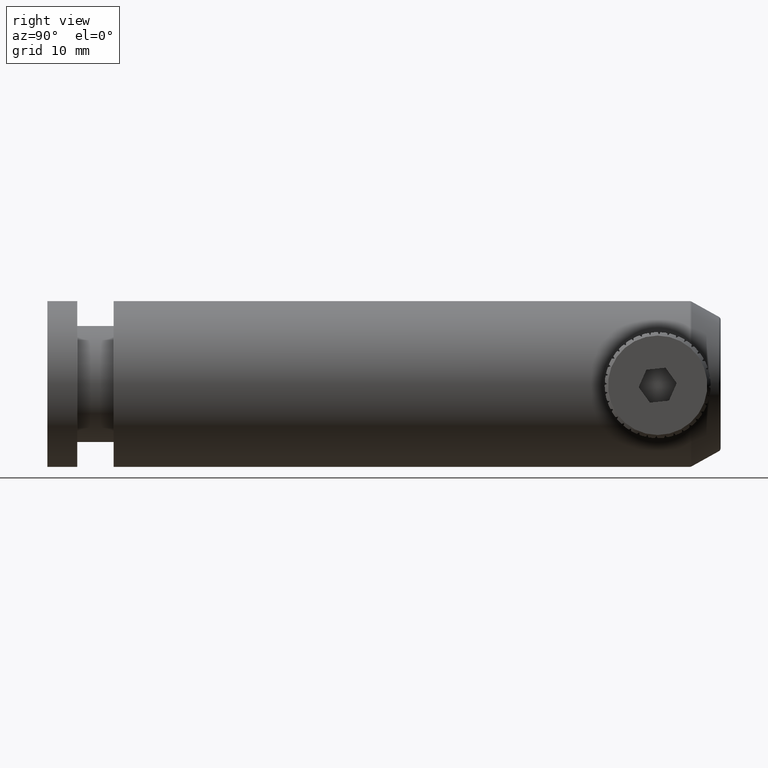
[diagram: clean part render]
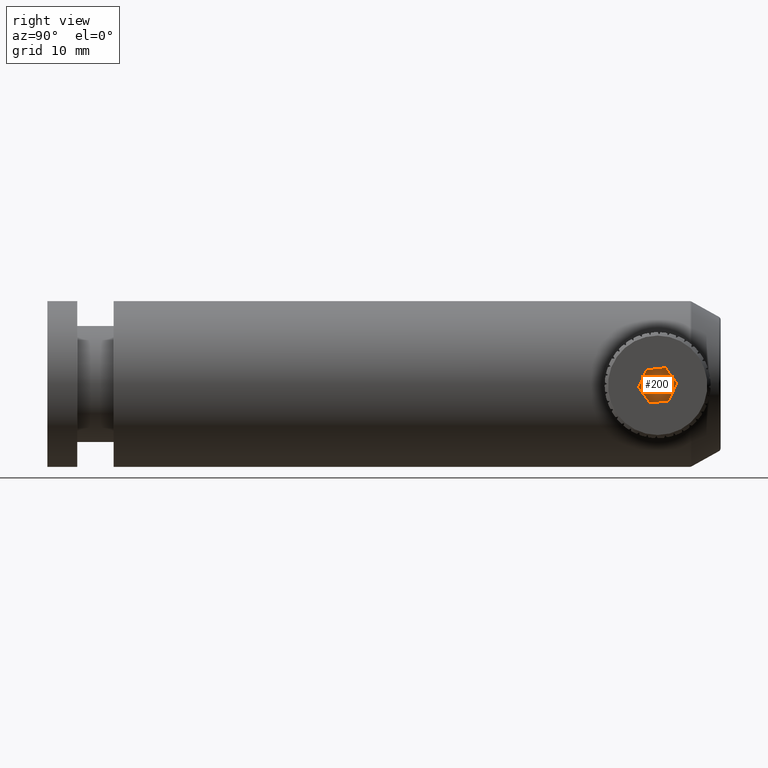
[diagram: same view with one face highlighted and labeled with its STEP entity id]
A machine part, right view. The second image highlights one B-rep face of the part: STEP entity #200.
In plain terms, the highlighted planar face has unit normal (1, -0, 0).
Its self-contained STEP definition (entity closure, byte-faithful):
#200 = ADVANCED_FACE ( 'NONE', ( #3791 ), #4074, .T. ) ;
#229 = CARTESIAN_POINT ( 'NONE',  ( 13.88421014442427800, 74.08801883032343500, 1.138362206611580600 ) ) ;
#232 = DIRECTION ( 'NONE',  ( 0.0000000000000000000, -0.5883323177282200300, 0.8086192453290613800 ) ) ;
#346 = ORIENTED_EDGE ( 'NONE', *, *, #1008, .T. ) ;
#416 = VECTOR ( 'NONE', #832, 1000.000000000000000 ) ;
#521 = VERTEX_POINT ( 'NONE', #5000 ) ;
#766 = EDGE_LOOP ( 'NONE', ( #346, #1031, #3206, #2601, #1125, #1782 ) ) ;
#832 = DIRECTION ( 'NONE',  ( 0.0000000000000000000, -0.9944509673080784700, -0.1052011103554853500 ) ) ;
#894 = CARTESIAN_POINT ( 'NONE',  ( 13.88421014442427800, 74.08801883032343500, 1.138362206611580600 ) ) ;
#1008 = EDGE_CURVE ( 'NONE', #5289, #2840, #1048, .T. ) ;
#1031 = ORIENTED_EDGE ( 'NONE', *, *, #5010, .T. ) ;
#1048 = LINE ( 'NONE', #2677, #1759 ) ;
#1109 = LINE ( 'NONE', #4413, #3018 ) ;
#1125 = ORIENTED_EDGE ( 'NONE', *, *, #2159, .T. ) ;
#1132 = DIRECTION ( 'NONE',  ( 0.0000000000000000000, 0.4061186495798582700, 0.9138203556845472300 ) ) ;
#1236 = CARTESIAN_POINT ( 'NONE',  ( 13.88421014442427800, 76.95875149867944700, 1.442051653525515500 ) ) ;
#1266 = VECTOR ( 'NONE', #2642, 1000.000000000000100 ) ;
#1759 = VECTOR ( 'NONE', #232, 1000.000000000000000 ) ;
#1782 = ORIENTED_EDGE ( 'NONE', *, *, #1987, .T. ) ;
#1810 = VERTEX_POINT ( 'NONE', #3422 ) ;
#1839 = VECTOR ( 'NONE', #2418, 1000.000000000000100 ) ;
#1987 = EDGE_CURVE ( 'NONE', #1810, #5289, #1109, .T. ) ;
#2029 = AXIS2_PLACEMENT_3D ( 'NONE', #3273, #4508, #4927 ) ;
#2069 = VECTOR ( 'NONE', #3003, 1000.000000000000000 ) ;
#2159 = EDGE_CURVE ( 'NONE', #521, #1810, #2382, .T. ) ;
#2280 = LINE ( 'NONE', #3612, #1839 ) ;
#2382 = LINE ( 'NONE', #2680, #2069 ) ;
#2418 = DIRECTION ( 'NONE',  ( 0.0000000000000000000, 0.5883323177282200300, -0.8086192453290613800 ) ) ;
#2601 = ORIENTED_EDGE ( 'NONE', *, *, #3578, .T. ) ;
#2642 = DIRECTION ( 'NONE',  ( 0.0000000000000000000, -0.4061186495798582700, -0.9138203556845472300 ) ) ;
#2667 = CARTESIAN_POINT ( 'NONE',  ( 13.88421014442427800, 76.95875149867944700, 1.442051653525516100 ) ) ;
#2677 = CARTESIAN_POINT ( 'NONE',  ( 13.88421014442427800, 78.65712060874616900, -0.8922310412877133600 ) ) ;
#2680 = CARTESIAN_POINT ( 'NONE',  ( 13.88421014442427800, 74.61402438210088000, -3.833892629928812700 ) ) ;
#2738 = CARTESIAN_POINT ( 'NONE',  ( 13.88421014442427800, 78.65712060874616900, -0.8922310412877153500 ) ) ;
#2840 = VERTEX_POINT ( 'NONE', #2667 ) ;
#3003 = DIRECTION ( 'NONE',  ( 0.0000000000000000000, 0.9944509673080784700, 0.1052011103554854100 ) ) ;
#3018 = VECTOR ( 'NONE', #1132, 1000.000000000000100 ) ;
#3206 = ORIENTED_EDGE ( 'NONE', *, *, #4093, .T. ) ;
#3273 = CARTESIAN_POINT ( 'NONE',  ( 13.88421014442428500, 0.0000000000000000000, 0.0000000000000000000 ) ) ;
#3288 = LINE ( 'NONE', #229, #1266 ) ;
#3422 = CARTESIAN_POINT ( 'NONE',  ( 13.88421014442427800, 77.48475705045689200, -3.530203183014878600 ) ) ;
#3578 = EDGE_CURVE ( 'NONE', #4155, #521, #2280, .T. ) ;
#3612 = CARTESIAN_POINT ( 'NONE',  ( 13.88421014442427800, 72.91565527203415800, -1.499609935115584900 ) ) ;
#3791 = FACE_OUTER_BOUND ( 'NONE', #766, .T. ) ;
#3813 = CARTESIAN_POINT ( 'NONE',  ( 13.88421014442427800, 72.91565527203415800, -1.499609935115582700 ) ) ;
#3857 = VERTEX_POINT ( 'NONE', #894 ) ;
#4074 = PLANE ( 'NONE',  #2029 ) ;
#4093 = EDGE_CURVE ( 'NONE', #3857, #4155, #3288, .T. ) ;
#4155 = VERTEX_POINT ( 'NONE', #3813 ) ;
#4413 = CARTESIAN_POINT ( 'NONE',  ( 13.88421014442427800, 77.48475705045689200, -3.530203183014878100 ) ) ;
#4435 = LINE ( 'NONE', #1236, #416 ) ;
#4508 = DIRECTION ( 'NONE',  ( 1.000000000000000000, -0.0000000000000000000, 0.0000000000000000000 ) ) ;
#4927 = DIRECTION ( 'NONE',  ( 0.0000000000000000000, 0.0000000000000000000, -1.000000000000000000 ) ) ;
#5000 = CARTESIAN_POINT ( 'NONE',  ( 13.88421014442427800, 74.61402438210088000, -3.833892629928813600 ) ) ;
#5010 = EDGE_CURVE ( 'NONE', #2840, #3857, #4435, .T. ) ;
#5289 = VERTEX_POINT ( 'NONE', #2738 ) ;